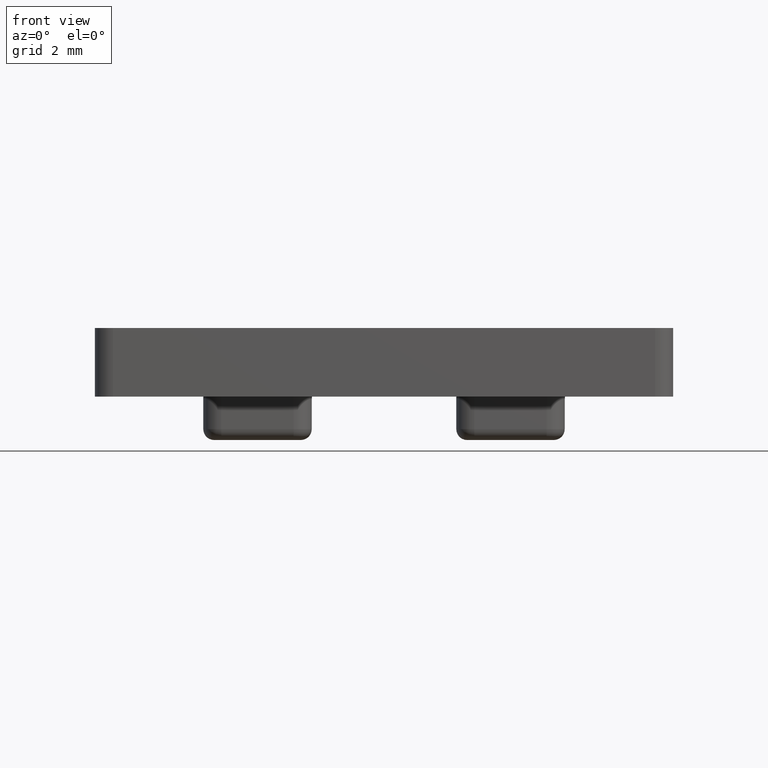
[diagram: clean part render]
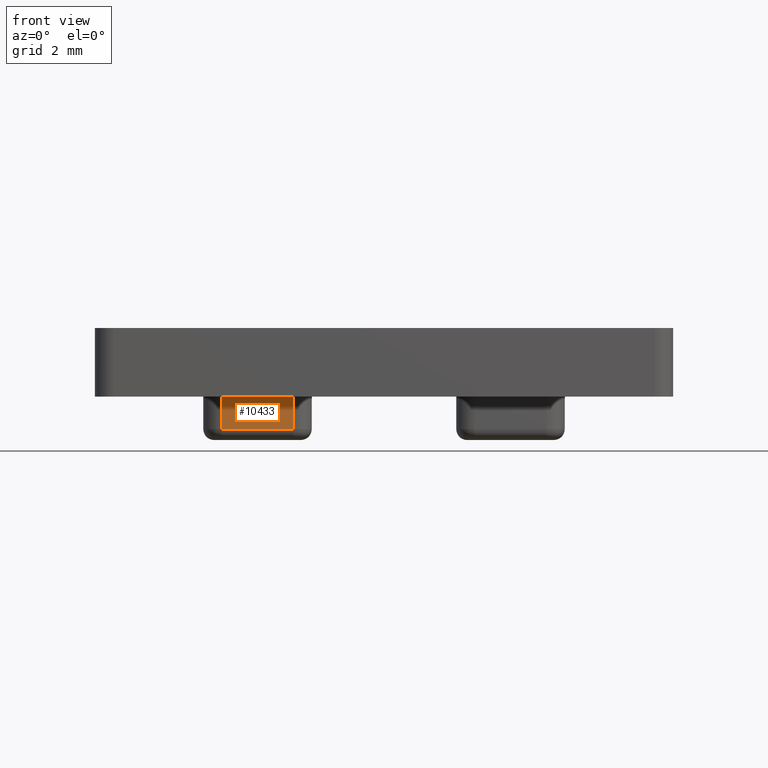
[diagram: same view with one face highlighted and labeled with its STEP entity id]
A machine part, front view. The second image highlights one B-rep face of the part: STEP entity #10433.
In plain terms, the highlighted planar face has unit normal (0, 1, 0).
Its self-contained STEP definition (entity closure, byte-faithful):
#467 = VECTOR ( 'NONE', #827, 1000.000000000000000 ) ;
#469 = EDGE_CURVE ( 'NONE', #1494, #4626, #2253, .T. ) ;
#719 = PLANE ( 'NONE',  #9381 ) ;
#827 = DIRECTION ( 'NONE',  ( -1.000000000000000000, 1.445602896647339200E-016, 0.0000000000000000000 ) ) ;
#1088 = DIRECTION ( 'NONE',  ( -0.0000000000000000000, 0.0000000000000000000, -1.000000000000000000 ) ) ;
#1111 = VECTOR ( 'NONE', #1088, 1000.000000000000000 ) ;
#1494 = VERTEX_POINT ( 'NONE', #4871 ) ;
#1678 = DIRECTION ( 'NONE',  ( 1.000000000000000000, -1.445602896647339200E-016, 0.0000000000000000000 ) ) ;
#2253 = LINE ( 'NONE', #2659, #3250 ) ;
#2254 = EDGE_LOOP ( 'NONE', ( #8416, #10707, #13421, #3067 ) ) ;
#2659 = CARTESIAN_POINT ( 'NONE',  ( -2.500000000000000000, -2.850000000000000100, -1.200000000000000000 ) ) ;
#2860 = EDGE_CURVE ( 'NONE', #13399, #1494, #4898, .T. ) ;
#3067 = ORIENTED_EDGE ( 'NONE', *, *, #10961, .T. ) ;
#3250 = VECTOR ( 'NONE', #11234, 1000.000000000000000 ) ;
#3273 = CARTESIAN_POINT ( 'NONE',  ( -4.500000000000000900, -2.849999999999999600, -1.200000000000000000 ) ) ;
#3293 = LINE ( 'NONE', #8323, #467 ) ;
#4556 = VECTOR ( 'NONE', #1678, 1000.000000000000000 ) ;
#4626 = VERTEX_POINT ( 'NONE', #9302 ) ;
#4823 = CARTESIAN_POINT ( 'NONE',  ( -4.500000000000000900, -2.849999999999999600, 0.0000000000000000000 ) ) ;
#4871 = CARTESIAN_POINT ( 'NONE',  ( -2.500000000000000000, -2.850000000000000100, -0.9000000000000000200 ) ) ;
#4898 = LINE ( 'NONE', #13288, #4556 ) ;
#4965 = LINE ( 'NONE', #3273, #1111 ) ;
#5222 = DIRECTION ( 'NONE',  ( -1.000000000000000000, 1.445602896647339200E-016, 0.0000000000000000000 ) ) ;
#5265 = DIRECTION ( 'NONE',  ( 1.445602896647339200E-016, 1.000000000000000000, 0.0000000000000000000 ) ) ;
#5357 = CARTESIAN_POINT ( 'NONE',  ( -2.000000000000000000, -2.850000000000000100, -1.200000000000000000 ) ) ;
#8190 = FACE_OUTER_BOUND ( 'NONE', #2254, .T. ) ;
#8323 = CARTESIAN_POINT ( 'NONE',  ( -2.000000000000000000, -2.850000000000000100, 0.0000000000000000000 ) ) ;
#8416 = ORIENTED_EDGE ( 'NONE', *, *, #13413, .T. ) ;
#9302 = CARTESIAN_POINT ( 'NONE',  ( -2.500000000000000000, -2.850000000000000100, 0.0000000000000000000 ) ) ;
#9381 = AXIS2_PLACEMENT_3D ( 'NONE', #5357, #5265, #5222 ) ;
#10433 = ADVANCED_FACE ( 'NONE', ( #8190 ), #719, .F. ) ;
#10707 = ORIENTED_EDGE ( 'NONE', *, *, #2860, .T. ) ;
#10961 = EDGE_CURVE ( 'NONE', #4626, #13585, #3293, .T. ) ;
#11234 = DIRECTION ( 'NONE',  ( 0.0000000000000000000, -0.0000000000000000000, 1.000000000000000000 ) ) ;
#12825 = CARTESIAN_POINT ( 'NONE',  ( -4.500000000000000900, -2.849999999999999600, -0.9000000000000000200 ) ) ;
#13288 = CARTESIAN_POINT ( 'NONE',  ( -2.500000000000000000, -2.850000000000000100, -0.9000000000000000200 ) ) ;
#13399 = VERTEX_POINT ( 'NONE', #12825 ) ;
#13413 = EDGE_CURVE ( 'NONE', #13585, #13399, #4965, .T. ) ;
#13421 = ORIENTED_EDGE ( 'NONE', *, *, #469, .T. ) ;
#13585 = VERTEX_POINT ( 'NONE', #4823 ) ;